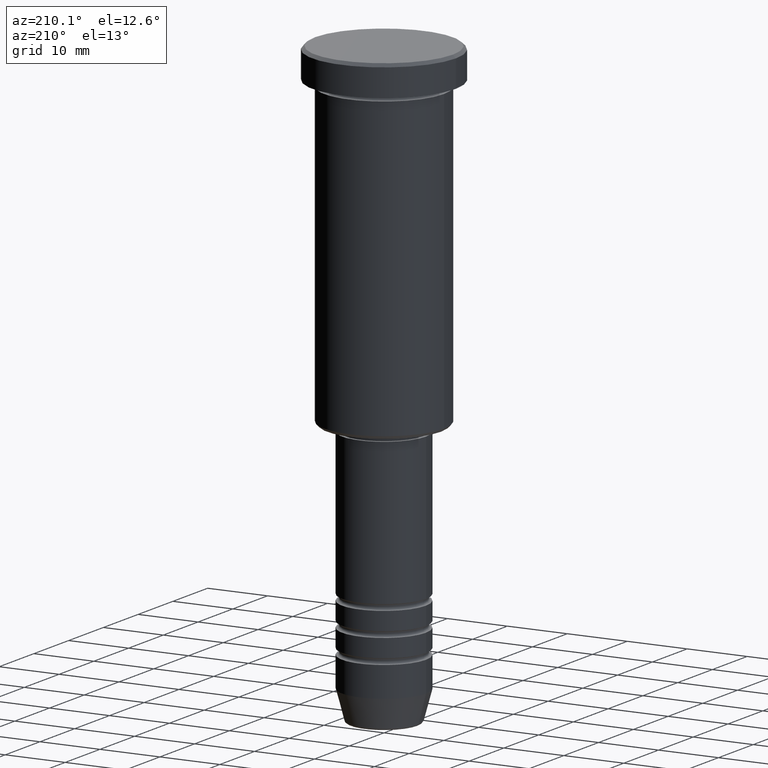
[diagram: clean part render]
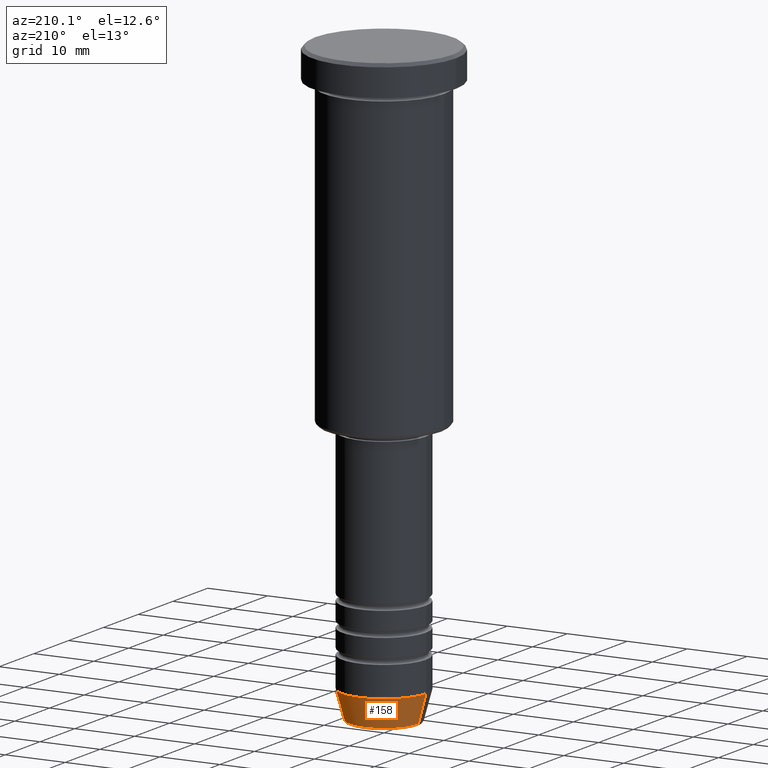
[diagram: same view with one face highlighted and labeled with its STEP entity id]
A machine part, auxiliary view. The second image highlights one B-rep face of the part: STEP entity #158.
In plain terms, the highlighted conical surface has half-angle 15 deg.
Its self-contained STEP definition (entity closure, byte-faithful):
#16 = CARTESIAN_POINT ( 'NONE',  ( -7.000000000000000888, 8.572527594031474176E-16, -95.00000000000000000 ) ) ;
#77 = ORIENTED_EDGE ( 'NONE', *, *, #702, .T. ) ;
#78 = LINE ( 'NONE', #728, #1179 ) ;
#115 = DIRECTION ( 'NONE',  ( -0.2588190451025213501, 3.169619151431772337E-17, 0.9659258262890680902 ) ) ;
#158 = ADVANCED_FACE ( 'NONE', ( #765 ), #780, .T. ) ;
#183 = DIRECTION ( 'NONE',  ( 0.2588190451025213501, 0.000000000000000000, 0.9659258262890680902 ) ) ;
#209 = DIRECTION ( 'NONE',  ( 1.000000000000000000, 0.000000000000000000, 0.000000000000000000 ) ) ;
#237 = CARTESIAN_POINT ( 'NONE',  ( 7.000000000000000888, 0.000000000000000000, -95.00000000000000000 ) ) ;
#273 = DIRECTION ( 'NONE',  ( -0.000000000000000000, -0.000000000000000000, 1.000000000000000000 ) ) ;
#331 = EDGE_CURVE ( 'NONE', #1049, #1015, #527, .T. ) ;
#366 = CARTESIAN_POINT ( 'NONE',  ( 0.000000000000000000, 0.000000000000000000, -99.62940952255127058 ) ) ;
#385 = EDGE_CURVE ( 'NONE', #1049, #955, #78, .T. ) ;
#444 = EDGE_LOOP ( 'NONE', ( #1110, #77, #530, #997 ) ) ;
#493 = DIRECTION ( 'NONE',  ( -0.000000000000000000, -0.000000000000000000, 1.000000000000000000 ) ) ;
#527 = CIRCLE ( 'NONE', #559, 5.759553456999433330 ) ;
#530 = ORIENTED_EDGE ( 'NONE', *, *, #749, .F. ) ;
#535 = DIRECTION ( 'NONE',  ( 1.000000000000000000, 0.000000000000000000, 0.000000000000000000 ) ) ;
#559 = AXIS2_PLACEMENT_3D ( 'NONE', #366, #273, #535 ) ;
#576 = CARTESIAN_POINT ( 'NONE',  ( 0.000000000000000000, 0.000000000000000000, -95.00000000000000000 ) ) ;
#587 = CARTESIAN_POINT ( 'NONE',  ( 5.759553456999433330, 0.000000000000000000, -99.62940952255127058 ) ) ;
#621 = VECTOR ( 'NONE', #115, 1000.000000000000000 ) ;
#652 = LINE ( 'NONE', #16, #621 ) ;
#667 = CARTESIAN_POINT ( 'NONE',  ( 0.000000000000000000, 0.000000000000000000, -95.00000000000000000 ) ) ;
#702 = EDGE_CURVE ( 'NONE', #1015, #1069, #652, .T. ) ;
#728 = CARTESIAN_POINT ( 'NONE',  ( 7.000000000000000888, 0.000000000000000000, -95.00000000000000000 ) ) ;
#749 = EDGE_CURVE ( 'NONE', #955, #1069, #815, .T. ) ;
#765 = FACE_OUTER_BOUND ( 'NONE', #444, .T. ) ;
#780 = CONICAL_SURFACE ( 'NONE', #932, 7.000000000000000888, 0.2617993877991500740 ) ;
#815 = CIRCLE ( 'NONE', #1099, 7.000000000000000888 ) ;
#866 = CARTESIAN_POINT ( 'NONE',  ( -5.759553456999433330, 7.812973149831950787E-16, -99.62940952255127058 ) ) ;
#932 = AXIS2_PLACEMENT_3D ( 'NONE', #667, #1037, #1164 ) ;
#955 = VERTEX_POINT ( 'NONE', #237 ) ;
#997 = ORIENTED_EDGE ( 'NONE', *, *, #385, .F. ) ;
#1015 = VERTEX_POINT ( 'NONE', #866 ) ;
#1037 = DIRECTION ( 'NONE',  ( -0.000000000000000000, -0.000000000000000000, 1.000000000000000000 ) ) ;
#1049 = VERTEX_POINT ( 'NONE', #587 ) ;
#1069 = VERTEX_POINT ( 'NONE', #1153 ) ;
#1099 = AXIS2_PLACEMENT_3D ( 'NONE', #576, #493, #209 ) ;
#1110 = ORIENTED_EDGE ( 'NONE', *, *, #331, .T. ) ;
#1153 = CARTESIAN_POINT ( 'NONE',  ( -7.000000000000000888, 8.572527594031474176E-16, -95.00000000000000000 ) ) ;
#1164 = DIRECTION ( 'NONE',  ( 1.000000000000000000, 0.000000000000000000, 0.000000000000000000 ) ) ;
#1179 = VECTOR ( 'NONE', #183, 1000.000000000000000 ) ;